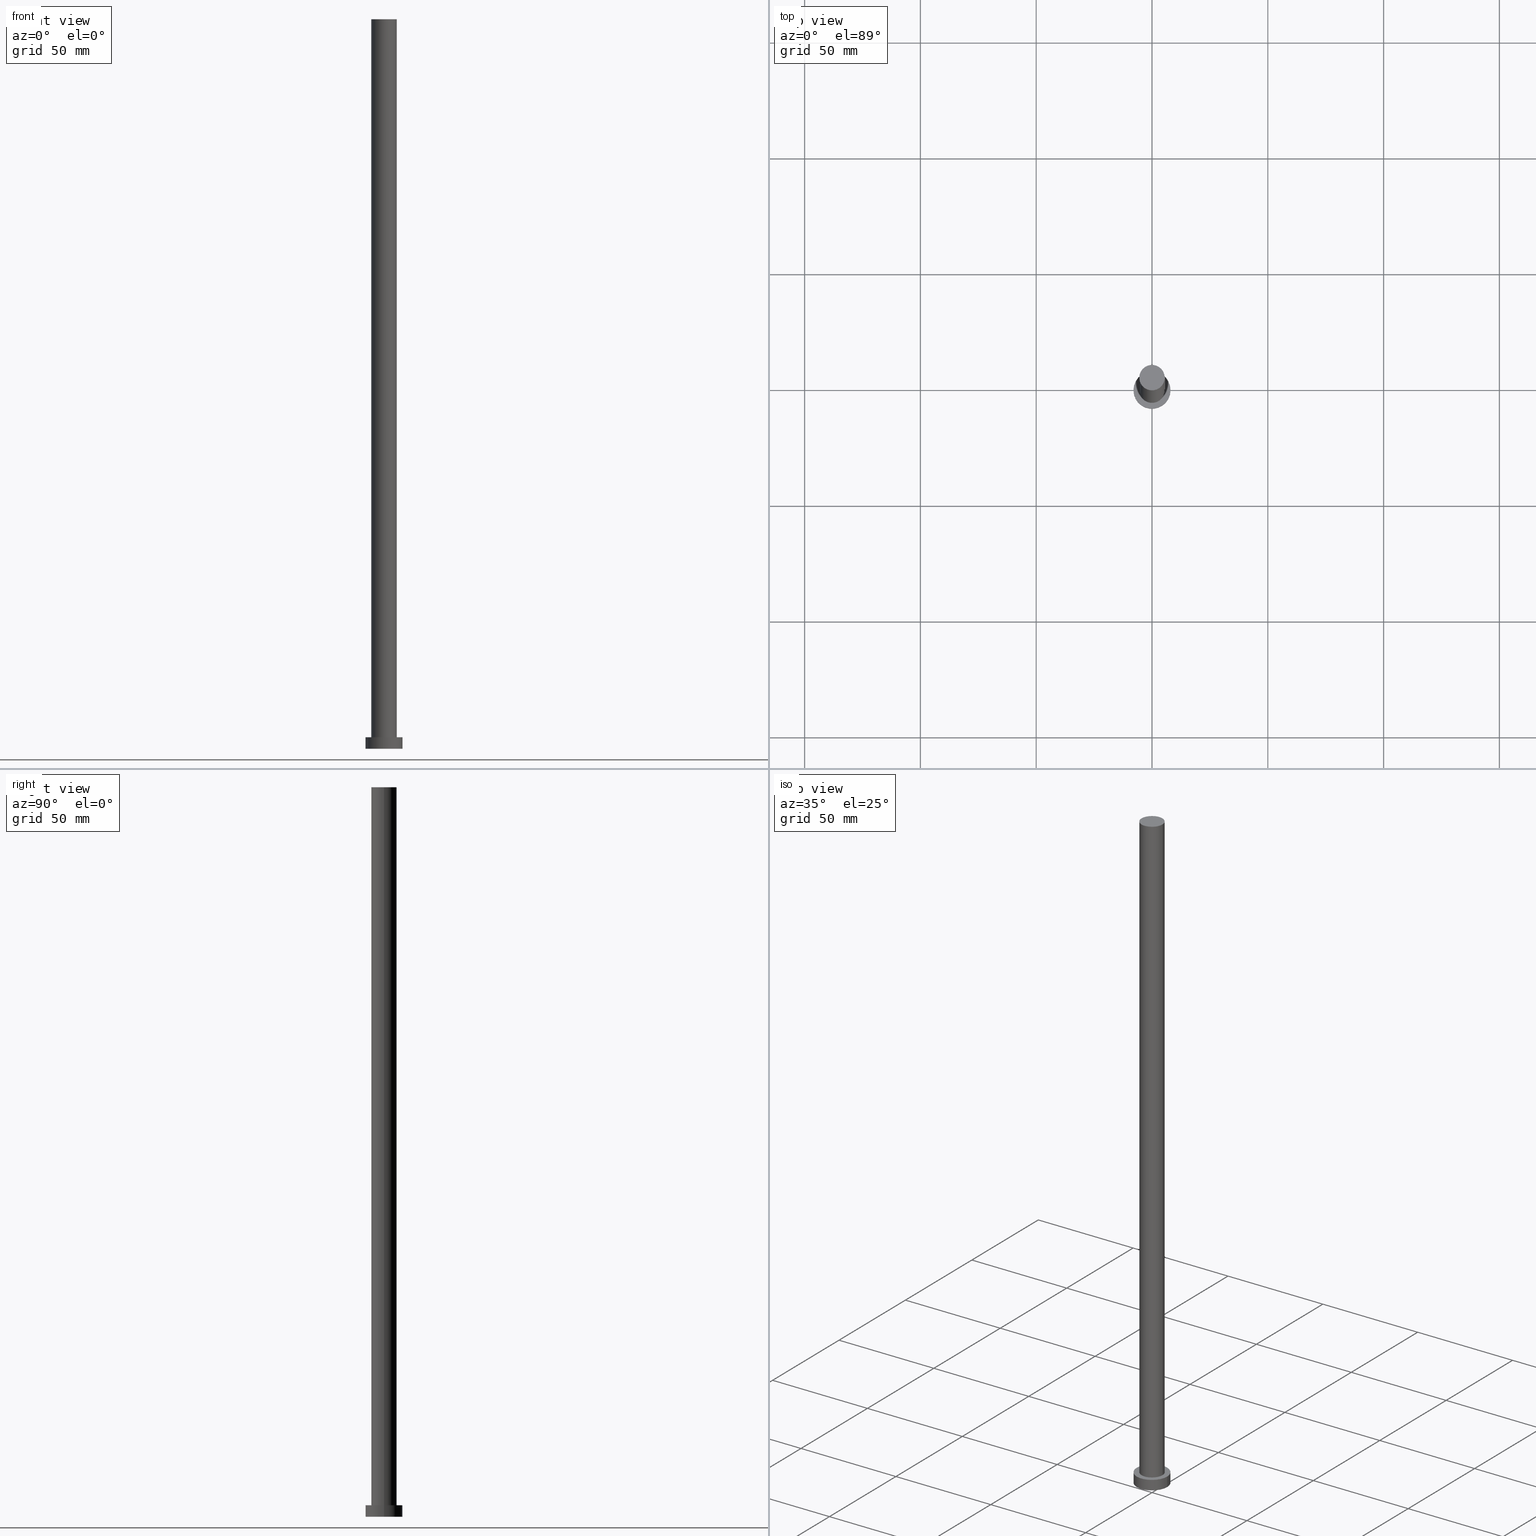
[diagram: canonical four-view strip — front | top / right | iso, engineering-drawing reading convention]
A machine part, canonical four-view strip (front | top / right | iso — engineering-drawing reading convention). The complete STEP part file that produces these views, byte-faithful:
ISO-10303-21;
HEADER;
FILE_DESCRIPTION (( 'STEP AP203' ),
    '1' );
FILE_NAME ('f2aa.STEP',
    '2023-02-13T12:28:49',
    ( '' ),
    ( '' ),
    'SwSTEP 2.0',
    'SolidWorks 2019',
    '' );
FILE_SCHEMA (( 'CONFIG_CONTROL_DESIGN' ));
ENDSEC;

DATA;
#1 = AXIS2_PLACEMENT_3D ( 'NONE', #174, #196, #247 ) ;
#2 = CIRCLE ( 'NONE', #202, 8.000000000000000000 ) ;
#3 = CALENDAR_DATE ( 2023, 13, 2 ) ;
#4 = VERTEX_POINT ( 'NONE', #134 ) ;
#5 = DIRECTION ( 'NONE',  ( -0.000000000000000000, -0.000000000000000000, -1.000000000000000000 ) ) ;
#6 = DIRECTION ( 'NONE',  ( -0.000000000000000000, -0.000000000000000000, -1.000000000000000000 ) ) ;
#7 = DIRECTION ( 'NONE',  ( 1.000000000000000000, 0.000000000000000000, -0.000000000000000000 ) ) ;
#8 = PRODUCT_DEFINITION_FORMATION_WITH_SPECIFIED_SOURCE ( 'LIBOVOLN�', '', #217, .NOT_KNOWN. ) ;
#9 = APPROVAL_STATUS ( 'not_yet_approved' ) ;
#10 = EDGE_LOOP ( 'NONE', ( #172, #209 ) ) ;
#11 = DIRECTION ( 'NONE',  ( 0.000000000000000000, 0.000000000000000000, 1.000000000000000000 ) ) ;
#12 = DIRECTION ( 'NONE',  ( 1.000000000000000000, 0.000000000000000000, 0.000000000000000000 ) ) ;
#13 = ADVANCED_BREP_SHAPE_REPRESENTATION ( 'f2aa', ( #161, #71 ), #159 ) ;
#14 = CC_DESIGN_PERSON_AND_ORGANIZATION_ASSIGNMENT ( #136, #182, ( #217 ) ) ;
#15 = CARTESIAN_POINT ( 'NONE',  ( 0.000000000000000000, 0.000000000000000000, 5.000000000000000000 ) ) ;
#16 = AXIS2_PLACEMENT_3D ( 'NONE', #155, #225, #12 ) ;
#17 = DIRECTION ( 'NONE',  ( 1.000000000000000000, 0.000000000000000000, 0.000000000000000000 ) ) ;
#18 = DESIGN_CONTEXT ( 'detailed design', #76, 'design' ) ;
#19 = DIRECTION ( 'NONE',  ( 0.000000000000000000, 0.000000000000000000, 1.000000000000000000 ) ) ;
#20 = CC_DESIGN_PERSON_AND_ORGANIZATION_ASSIGNMENT ( #21, #94, ( #26 ) ) ;
#21 = PERSON_AND_ORGANIZATION ( #104, #167 ) ;
#22 = VERTEX_POINT ( 'NONE', #45 ) ;
#23 = DIRECTION ( 'NONE',  ( 1.000000000000000000, 0.000000000000000000, 0.000000000000000000 ) ) ;
#24 = CIRCLE ( 'NONE', #163, 5.500000000000000000 ) ;
#25 = ORIENTED_EDGE ( 'NONE', *, *, #200, .T. ) ;
#26 = PRODUCT_DEFINITION ( 'NEZN�M�', '', #8, #18 ) ;
#27 = COORDINATED_UNIVERSAL_TIME_OFFSET ( 1, 0, .AHEAD. ) ;
#28 = PLANE ( 'NONE',  #183 ) ;
#29 = CC_DESIGN_APPROVAL ( #184, ( #137 ) ) ;
#30 = PERSON_AND_ORGANIZATION_ROLE ( 'design_supplier' ) ;
#31 = SHAPE_DEFINITION_REPRESENTATION ( #97, #13 ) ;
#32 = ORIENTED_EDGE ( 'NONE', *, *, #156, .F. ) ;
#33 = DIRECTION ( 'NONE',  ( 1.000000000000000000, 0.000000000000000000, -0.000000000000000000 ) ) ;
#34 = CARTESIAN_POINT ( 'NONE',  ( 0.000000000000000000, 0.000000000000000000, 315.0000000000000000 ) ) ;
#35 = CC_DESIGN_PERSON_AND_ORGANIZATION_ASSIGNMENT ( #203, #30, ( #8 ) ) ;
#36 = DIRECTION ( 'NONE',  ( -0.000000000000000000, -0.000000000000000000, -1.000000000000000000 ) ) ;
#37 =( NAMED_UNIT ( * ) PLANE_ANGLE_UNIT ( ) SI_UNIT ( $, .RADIAN. ) );
#38 = CARTESIAN_POINT ( 'NONE',  ( 0.000000000000000000, 0.000000000000000000, 315.0000000000000000 ) ) ;
#39 = AXIS2_PLACEMENT_3D ( 'NONE', #38, #107, #169 ) ;
#40 = DIRECTION ( 'NONE',  ( 1.000000000000000000, 0.000000000000000000, 0.000000000000000000 ) ) ;
#41 = APPROVAL_ROLE ( '' ) ;
#42 = CARTESIAN_POINT ( 'NONE',  ( 0.000000000000000000, 0.000000000000000000, 315.0000000000000000 ) ) ;
#43 = AXIS2_PLACEMENT_3D ( 'NONE', #101, #188, #7 ) ;
#44 = ORIENTED_EDGE ( 'NONE', *, *, #156, .T. ) ;
#45 = CARTESIAN_POINT ( 'NONE',  ( -5.500000000000000000, 0.000000000000000000, 315.0000000000000000 ) ) ;
#46 = CARTESIAN_POINT ( 'NONE',  ( 5.500000000000000000, 6.735557395310442023E-16, 315.0000000000000000 ) ) ;
#47 = APPROVAL_PERSON_ORGANIZATION ( #146, #165, #141 ) ;
#48 = PRODUCT_RELATED_PRODUCT_CATEGORY ( 'detail', '', ( #217 ) ) ;
#49 = AXIS2_PLACEMENT_3D ( 'NONE', #187, #6, #105 ) ;
#50 = APPROVAL_DATE_TIME ( #99, #165 ) ;
#51 = CYLINDRICAL_SURFACE ( 'NONE', #1, 5.500000000000000000 ) ;
#52 = COORDINATED_UNIVERSAL_TIME_OFFSET ( 1, 0, .AHEAD. ) ;
#53 = PLANE ( 'NONE',  #43 ) ;
#54 = APPROVAL_ROLE ( '' ) ;
#55 = ORIENTED_EDGE ( 'NONE', *, *, #223, .F. ) ;
#56 = VECTOR ( 'NONE', #5, 1000.000000000000000 ) ;
#57 = CARTESIAN_POINT ( 'NONE',  ( 0.000000000000000000, 0.000000000000000000, 0.000000000000000000 ) ) ;
#58 = CARTESIAN_POINT ( 'NONE',  ( -5.500000000000000000, 0.000000000000000000, 5.000000000000000000 ) ) ;
#59 = DIRECTION ( 'NONE',  ( 1.000000000000000000, 0.000000000000000000, 0.000000000000000000 ) ) ;
#60 = LOCAL_TIME ( 13, 28, 49.00000000000000000, #109 ) ;
#61 = PERSON_AND_ORGANIZATION ( #104, #167 ) ;
#62 = ORIENTED_EDGE ( 'NONE', *, *, #69, .F. ) ;
#63 = LINE ( 'NONE', #46, #236 ) ;
#64 = CC_DESIGN_PERSON_AND_ORGANIZATION_ASSIGNMENT ( #143, #205, ( #8 ) ) ;
#65 = DIRECTION ( 'NONE',  ( -0.000000000000000000, -0.000000000000000000, -1.000000000000000000 ) ) ;
#66 = AXIS2_PLACEMENT_3D ( 'NONE', #57, #246, #132 ) ;
#67 = APPROVAL ( #131, 'NEUR�EN�' ) ;
#68 = DATE_AND_TIME ( #238, #199 ) ;
#69 = EDGE_CURVE ( 'NONE', #234, #4, #63, .T. ) ;
#70 = FACE_OUTER_BOUND ( 'NONE', #216, .T. ) ;
#71 = AXIS2_PLACEMENT_3D ( 'NONE', #197, #19, #17 ) ;
#72 = DIRECTION ( 'NONE',  ( -1.000000000000000000, 0.000000000000000000, 0.000000000000000000 ) ) ;
#73 = EDGE_LOOP ( 'NONE', ( #32, #171 ) ) ;
#74 = CARTESIAN_POINT ( 'NONE',  ( 0.000000000000000000, 0.000000000000000000, 5.000000000000000000 ) ) ;
#75 = ORIENTED_EDGE ( 'NONE', *, *, #223, .T. ) ;
#76 = APPLICATION_CONTEXT ( 'configuration controlled 3d designs of mechanical parts and assemblies' ) ;
#77 = EDGE_LOOP ( 'NONE', ( #127, #124, #153, #162 ) ) ;
#78 = CC_DESIGN_APPROVAL ( #165, ( #8 ) ) ;
#79 = CC_DESIGN_DATE_AND_TIME_ASSIGNMENT ( #68, #185, ( #26 ) ) ;
#80 = APPLICATION_PROTOCOL_DEFINITION ( 'international standard', 'config_control_design', 1994, #82 ) ;
#81 = CYLINDRICAL_SURFACE ( 'NONE', #166, 8.000000000000000000 ) ;
#82 = APPLICATION_CONTEXT ( 'configuration controlled 3d designs of mechanical parts and assemblies' ) ;
#83 = CALENDAR_DATE ( 2023, 13, 2 ) ;
#84 = ADVANCED_FACE ( 'NONE', ( #114 ), #81, .T. ) ;
#85 = DIRECTION ( 'NONE',  ( -0.000000000000000000, -0.000000000000000000, -1.000000000000000000 ) ) ;
#86 = DATE_AND_TIME ( #121, #138 ) ;
#87 = DIRECTION ( 'NONE',  ( 0.000000000000000000, 0.000000000000000000, 1.000000000000000000 ) ) ;
#88 = VERTEX_POINT ( 'NONE', #58 ) ;
#89 = FACE_BOUND ( 'NONE', #73, .T. ) ;
#90 = DIRECTION ( 'NONE',  ( 0.000000000000000000, 0.000000000000000000, 1.000000000000000000 ) ) ;
#91 = AXIS2_PLACEMENT_3D ( 'NONE', #74, #87, #213 ) ;
#92 = MECHANICAL_CONTEXT ( 'NONE', #82, 'mechanical' ) ;
#93 = CALENDAR_DATE ( 2023, 13, 2 ) ;
#94 = PERSON_AND_ORGANIZATION_ROLE ( 'creator' ) ;
#95 = CLOSED_SHELL ( 'NONE', ( #201, #125, #84, #253, #135, #192, #181 ) ) ;
#96 = LINE ( 'NONE', #229, #56 ) ;
#97 = PRODUCT_DEFINITION_SHAPE ( 'NONE', 'NONE',  #26 ) ;
#98 = AXIS2_PLACEMENT_3D ( 'NONE', #147, #219, #40 ) ;
#99 = DATE_AND_TIME ( #3, #179 ) ;
#100 = PERSON_AND_ORGANIZATION ( #104, #167 ) ;
#101 = CARTESIAN_POINT ( 'NONE',  ( 0.000000000000000000, 0.000000000000000000, 5.000000000000000000 ) ) ;
#102 = ORIENTED_EDGE ( 'NONE', *, *, #211, .T. ) ;
#103 = EDGE_CURVE ( 'NONE', #241, #189, #212, .T. ) ;
#104 = PERSON ( 'NEUR�EN�', 'NEUR�EN�', 'NEUR�EN�', ('NEUR�EN�'), ('NEUR�EN�'), ('NEUR�EN�') ) ;
#105 = DIRECTION ( 'NONE',  ( -1.000000000000000000, 0.000000000000000000, 0.000000000000000000 ) ) ;
#106 = CC_DESIGN_PERSON_AND_ORGANIZATION_ASSIGNMENT ( #100, #186, ( #137 ) ) ;
#107 = DIRECTION ( 'NONE',  ( 0.000000000000000000, 0.000000000000000000, 1.000000000000000000 ) ) ;
#108 = CARTESIAN_POINT ( 'NONE',  ( 5.500000000000000000, 6.735557395310442023E-16, 315.0000000000000000 ) ) ;
#109 = COORDINATED_UNIVERSAL_TIME_OFFSET ( 1, 0, .AHEAD. ) ;
#110 = CIRCLE ( 'NONE', #91, 5.500000000000000000 ) ;
#111 = APPROVAL_DATE_TIME ( #248, #67 ) ;
#112 = ORIENTED_EDGE ( 'NONE', *, *, #103, .F. ) ;
#113 = EDGE_CURVE ( 'NONE', #189, #222, #252, .T. ) ;
#114 = FACE_OUTER_BOUND ( 'NONE', #175, .T. ) ;
#115 = APPROVAL_PERSON_ORGANIZATION ( #61, #67, #41 ) ;
#116 = DATE_TIME_ROLE ( 'classification_date' ) ;
#117 = DATE_AND_TIME ( #83, #118 ) ;
#118 = LOCAL_TIME ( 13, 28, 49.00000000000000000, #27 ) ;
#119 = COORDINATED_UNIVERSAL_TIME_OFFSET ( 1, 0, .AHEAD. ) ;
#120 = UNCERTAINTY_MEASURE_WITH_UNIT (LENGTH_MEASURE( 1.000000000000000082E-05 ), #170, 'distance_accuracy_value', 'NONE');
#121 = CALENDAR_DATE ( 2023, 13, 2 ) ;
#122 = CARTESIAN_POINT ( 'NONE',  ( 8.000000000000000000, 9.797174393178825657E-16, 5.000000000000000000 ) ) ;
#123 = DIRECTION ( 'NONE',  ( 1.000000000000000000, 0.000000000000000000, 0.000000000000000000 ) ) ;
#124 = ORIENTED_EDGE ( 'NONE', *, *, #103, .T. ) ;
#125 = ADVANCED_FACE ( 'NONE', ( #129 ), #210, .T. ) ;
#126 = DIRECTION ( 'NONE',  ( 0.000000000000000000, 0.000000000000000000, 1.000000000000000000 ) ) ;
#127 = ORIENTED_EDGE ( 'NONE', *, *, #200, .F. ) ;
#128 = VECTOR ( 'NONE', #36, 1000.000000000000000 ) ;
#129 = FACE_OUTER_BOUND ( 'NONE', #77, .T. ) ;
#130 = ORIENTED_EDGE ( 'NONE', *, *, #113, .F. ) ;
#131 = APPROVAL_STATUS ( 'not_yet_approved' ) ;
#132 = DIRECTION ( 'NONE',  ( 1.000000000000000000, 0.000000000000000000, 0.000000000000000000 ) ) ;
#133 = CYLINDRICAL_SURFACE ( 'NONE', #191, 5.500000000000000000 ) ;
#134 = CARTESIAN_POINT ( 'NONE',  ( 5.500000000000000000, 6.735557395310442023E-16, 5.000000000000000000 ) ) ;
#135 = ADVANCED_FACE ( 'NONE', ( #176 ), #244, .F. ) ;
#136 = PERSON_AND_ORGANIZATION ( #104, #167 ) ;
#137 = SECURITY_CLASSIFICATION ( '', '', #224 ) ;
#138 = LOCAL_TIME ( 13, 28, 49.00000000000000000, #168 ) ;
#139 = CC_DESIGN_DATE_AND_TIME_ASSIGNMENT ( #86, #116, ( #137 ) ) ;
#140 = FACE_OUTER_BOUND ( 'NONE', #10, .T. ) ;
#141 = APPROVAL_ROLE ( '' ) ;
#142 = CARTESIAN_POINT ( 'NONE',  ( 8.000000000000000000, 9.797174393178825657E-16, 0.000000000000000000 ) ) ;
#143 = PERSON_AND_ORGANIZATION ( #104, #167 ) ;
#144 = EDGE_LOOP ( 'NONE', ( #148, #130 ) ) ;
#145 = AXIS2_PLACEMENT_3D ( 'NONE', #195, #90, #33 ) ;
#146 = PERSON_AND_ORGANIZATION ( #104, #167 ) ;
#147 = CARTESIAN_POINT ( 'NONE',  ( 0.000000000000000000, 0.000000000000000000, 0.000000000000000000 ) ) ;
#148 = ORIENTED_EDGE ( 'NONE', *, *, #218, .F. ) ;
#149 = EDGE_CURVE ( 'NONE', #234, #22, #190, .T. ) ;
#150 = LINE ( 'NONE', #237, #226 ) ;
#151 = CARTESIAN_POINT ( 'NONE',  ( 0.000000000000000000, 0.000000000000000000, 5.000000000000000000 ) ) ;
#152 = ORIENTED_EDGE ( 'NONE', *, *, #160, .T. ) ;
#153 = ORIENTED_EDGE ( 'NONE', *, *, #113, .T. ) ;
#154 = APPROVAL_STATUS ( 'not_yet_approved' ) ;
#155 = CARTESIAN_POINT ( 'NONE',  ( 0.000000000000000000, 0.000000000000000000, 315.0000000000000000 ) ) ;
#156 = EDGE_CURVE ( 'NONE', #88, #4, #24, .T. ) ;
#157 = CARTESIAN_POINT ( 'NONE',  ( 8.000000000000000000, 9.797174393178825657E-16, 5.000000000000000000 ) ) ;
#158 = DIRECTION ( 'NONE',  ( -1.000000000000000000, 0.000000000000000000, 0.000000000000000000 ) ) ;
#159 =( GEOMETRIC_REPRESENTATION_CONTEXT ( 3 ) GLOBAL_UNCERTAINTY_ASSIGNED_CONTEXT ( ( #120 ) ) GLOBAL_UNIT_ASSIGNED_CONTEXT ( ( #170, #37, #215 ) ) REPRESENTATION_CONTEXT ( 'NONE', 'WORKASPACE' ) );
#160 = EDGE_CURVE ( 'NONE', #22, #88, #96, .T. ) ;
#161 = MANIFOLD_SOLID_BREP ( 'P�idat vysunut�m3', #95 ) ;
#162 = ORIENTED_EDGE ( 'NONE', *, *, #173, .F. ) ;
#163 = AXIS2_PLACEMENT_3D ( 'NONE', #193, #11, #23 ) ;
#164 = EDGE_LOOP ( 'NONE', ( #75, #25 ) ) ;
#165 = APPROVAL ( #9, 'NEUR�EN�' ) ;
#166 = AXIS2_PLACEMENT_3D ( 'NONE', #232, #65, #158 ) ;
#167 = ORGANIZATION ( 'NEUR�EN�', 'NEUR�EN�', '' ) ;
#168 = COORDINATED_UNIVERSAL_TIME_OFFSET ( 1, 0, .AHEAD. ) ;
#169 = DIRECTION ( 'NONE',  ( 1.000000000000000000, 0.000000000000000000, 0.000000000000000000 ) ) ;
#170 =( LENGTH_UNIT ( ) NAMED_UNIT ( * ) SI_UNIT ( .MILLI., .METRE. ) );
#171 = ORIENTED_EDGE ( 'NONE', *, *, #211, .F. ) ;
#172 = ORIENTED_EDGE ( 'NONE', *, *, #235, .T. ) ;
#173 = EDGE_CURVE ( 'NONE', #231, #222, #150, .T. ) ;
#174 = CARTESIAN_POINT ( 'NONE',  ( 0.000000000000000000, 0.000000000000000000, 315.0000000000000000 ) ) ;
#175 = EDGE_LOOP ( 'NONE', ( #112, #55, #180, #255 ) ) ;
#176 = FACE_OUTER_BOUND ( 'NONE', #144, .T. ) ;
#177 = CC_DESIGN_SECURITY_CLASSIFICATION ( #137, ( #8 ) ) ;
#178 = ORIENTED_EDGE ( 'NONE', *, *, #235, .F. ) ;
#179 = LOCAL_TIME ( 13, 28, 49.00000000000000000, #52 ) ;
#180 = ORIENTED_EDGE ( 'NONE', *, *, #173, .T. ) ;
#181 = ADVANCED_FACE ( 'NONE', ( #140 ), #28, .T. ) ;
#182 = PERSON_AND_ORGANIZATION_ROLE ( 'design_owner' ) ;
#183 = AXIS2_PLACEMENT_3D ( 'NONE', #42, #228, #239 ) ;
#184 = APPROVAL ( #154, 'NEUR�EN�' ) ;
#185 = DATE_TIME_ROLE ( 'creation_date' ) ;
#186 = PERSON_AND_ORGANIZATION_ROLE ( 'classification_officer' ) ;
#187 = CARTESIAN_POINT ( 'NONE',  ( 0.000000000000000000, 0.000000000000000000, 5.000000000000000000 ) ) ;
#188 = DIRECTION ( 'NONE',  ( 0.000000000000000000, 0.000000000000000000, 1.000000000000000000 ) ) ;
#189 = VERTEX_POINT ( 'NONE', #142 ) ;
#190 = CIRCLE ( 'NONE', #39, 5.500000000000000000 ) ;
#191 = AXIS2_PLACEMENT_3D ( 'NONE', #34, #242, #72 ) ;
#192 = ADVANCED_FACE ( 'NONE', ( #70 ), #51, .T. ) ;
#193 = CARTESIAN_POINT ( 'NONE',  ( 0.000000000000000000, 0.000000000000000000, 5.000000000000000000 ) ) ;
#194 = CARTESIAN_POINT ( 'NONE',  ( -8.000000000000000000, 0.000000000000000000, 0.000000000000000000 ) ) ;
#195 = CARTESIAN_POINT ( 'NONE',  ( 0.000000000000000000, 0.000000000000000000, 0.000000000000000000 ) ) ;
#196 = DIRECTION ( 'NONE',  ( -0.000000000000000000, -0.000000000000000000, -1.000000000000000000 ) ) ;
#197 = CARTESIAN_POINT ( 'NONE',  ( 0.000000000000000000, 0.000000000000000000, 0.000000000000000000 ) ) ;
#198 = DIRECTION ( 'NONE',  ( -0.000000000000000000, -0.000000000000000000, -1.000000000000000000 ) ) ;
#199 = LOCAL_TIME ( 13, 28, 49.00000000000000000, #119 ) ;
#200 = EDGE_CURVE ( 'NONE', #241, #231, #2, .T. ) ;
#201 = ADVANCED_FACE ( 'NONE', ( #240 ), #133, .T. ) ;
#202 = AXIS2_PLACEMENT_3D ( 'NONE', #15, #126, #59 ) ;
#203 = PERSON_AND_ORGANIZATION ( #104, #167 ) ;
#204 = EDGE_LOOP ( 'NONE', ( #221, #249, #102, #243 ) ) ;
#205 = PERSON_AND_ORGANIZATION_ROLE ( 'creator' ) ;
#206 = CARTESIAN_POINT ( 'NONE',  ( -8.000000000000000000, 0.000000000000000000, 5.000000000000000000 ) ) ;
#207 = APPROVAL_DATE_TIME ( #117, #184 ) ;
#208 = DIRECTION ( 'NONE',  ( 0.000000000000000000, 0.000000000000000000, 1.000000000000000000 ) ) ;
#209 = ORIENTED_EDGE ( 'NONE', *, *, #149, .T. ) ;
#210 = CYLINDRICAL_SURFACE ( 'NONE', #49, 8.000000000000000000 ) ;
#211 = EDGE_CURVE ( 'NONE', #4, #88, #110, .T. ) ;
#212 = LINE ( 'NONE', #122, #128 ) ;
#213 = DIRECTION ( 'NONE',  ( 1.000000000000000000, 0.000000000000000000, 0.000000000000000000 ) ) ;
#214 = AXIS2_PLACEMENT_3D ( 'NONE', #151, #208, #123 ) ;
#215 =( NAMED_UNIT ( * ) SI_UNIT ( $, .STERADIAN. ) SOLID_ANGLE_UNIT ( ) );
#216 = EDGE_LOOP ( 'NONE', ( #62, #178, #152, #44 ) ) ;
#217 = PRODUCT ( 'f2aa', 'f2aa', '', ( #92 ) ) ;
#218 = EDGE_CURVE ( 'NONE', #222, #189, #230, .T. ) ;
#219 = DIRECTION ( 'NONE',  ( 0.000000000000000000, 0.000000000000000000, 1.000000000000000000 ) ) ;
#220 = PERSON_AND_ORGANIZATION ( #104, #167 ) ;
#221 = ORIENTED_EDGE ( 'NONE', *, *, #149, .F. ) ;
#222 = VERTEX_POINT ( 'NONE', #194 ) ;
#223 = EDGE_CURVE ( 'NONE', #231, #241, #254, .T. ) ;
#224 = SECURITY_CLASSIFICATION_LEVEL ( 'unclassified' ) ;
#225 = DIRECTION ( 'NONE',  ( 0.000000000000000000, 0.000000000000000000, 1.000000000000000000 ) ) ;
#226 = VECTOR ( 'NONE', #85, 1000.000000000000000 ) ;
#227 = FACE_OUTER_BOUND ( 'NONE', #164, .T. ) ;
#228 = DIRECTION ( 'NONE',  ( 0.000000000000000000, 0.000000000000000000, 1.000000000000000000 ) ) ;
#229 = CARTESIAN_POINT ( 'NONE',  ( -5.500000000000000000, 0.000000000000000000, 315.0000000000000000 ) ) ;
#230 = CIRCLE ( 'NONE', #98, 8.000000000000000000 ) ;
#231 = VERTEX_POINT ( 'NONE', #206 ) ;
#232 = CARTESIAN_POINT ( 'NONE',  ( 0.000000000000000000, 0.000000000000000000, 5.000000000000000000 ) ) ;
#233 = CIRCLE ( 'NONE', #16, 5.500000000000000000 ) ;
#234 = VERTEX_POINT ( 'NONE', #108 ) ;
#235 = EDGE_CURVE ( 'NONE', #22, #234, #233, .T. ) ;
#236 = VECTOR ( 'NONE', #198, 1000.000000000000000 ) ;
#237 = CARTESIAN_POINT ( 'NONE',  ( -8.000000000000000000, 0.000000000000000000, 5.000000000000000000 ) ) ;
#238 = CALENDAR_DATE ( 2023, 13, 2 ) ;
#239 = DIRECTION ( 'NONE',  ( 1.000000000000000000, 0.000000000000000000, -0.000000000000000000 ) ) ;
#240 = FACE_OUTER_BOUND ( 'NONE', #204, .T. ) ;
#241 = VERTEX_POINT ( 'NONE', #157 ) ;
#242 = DIRECTION ( 'NONE',  ( -0.000000000000000000, -0.000000000000000000, -1.000000000000000000 ) ) ;
#243 = ORIENTED_EDGE ( 'NONE', *, *, #160, .F. ) ;
#244 = PLANE ( 'NONE',  #145 ) ;
#245 = APPROVAL_PERSON_ORGANIZATION ( #220, #184, #54 ) ;
#246 = DIRECTION ( 'NONE',  ( 0.000000000000000000, 0.000000000000000000, 1.000000000000000000 ) ) ;
#247 = DIRECTION ( 'NONE',  ( -1.000000000000000000, 0.000000000000000000, 0.000000000000000000 ) ) ;
#248 = DATE_AND_TIME ( #93, #60 ) ;
#249 = ORIENTED_EDGE ( 'NONE', *, *, #69, .T. ) ;
#250 = CC_DESIGN_APPROVAL ( #67, ( #26 ) ) ;
#251 = APPLICATION_PROTOCOL_DEFINITION ( 'international standard', 'config_control_design', 1994, #76 ) ;
#252 = CIRCLE ( 'NONE', #66, 8.000000000000000000 ) ;
#253 = ADVANCED_FACE ( 'NONE', ( #89, #227 ), #53, .T. ) ;
#254 = CIRCLE ( 'NONE', #214, 8.000000000000000000 ) ;
#255 = ORIENTED_EDGE ( 'NONE', *, *, #218, .T. ) ;
ENDSEC;
END-ISO-10303-21;
